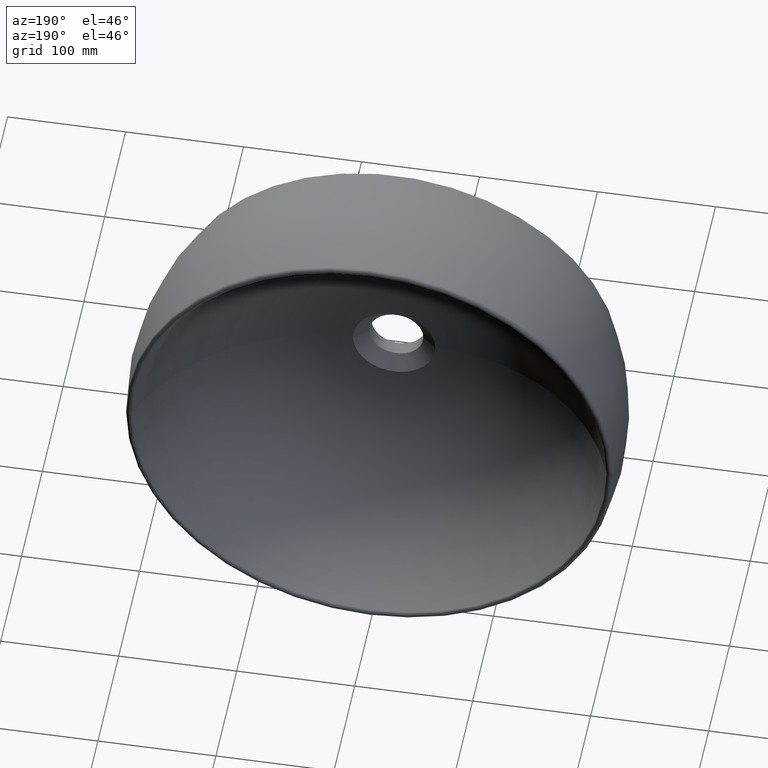
[diagram: clean part render]
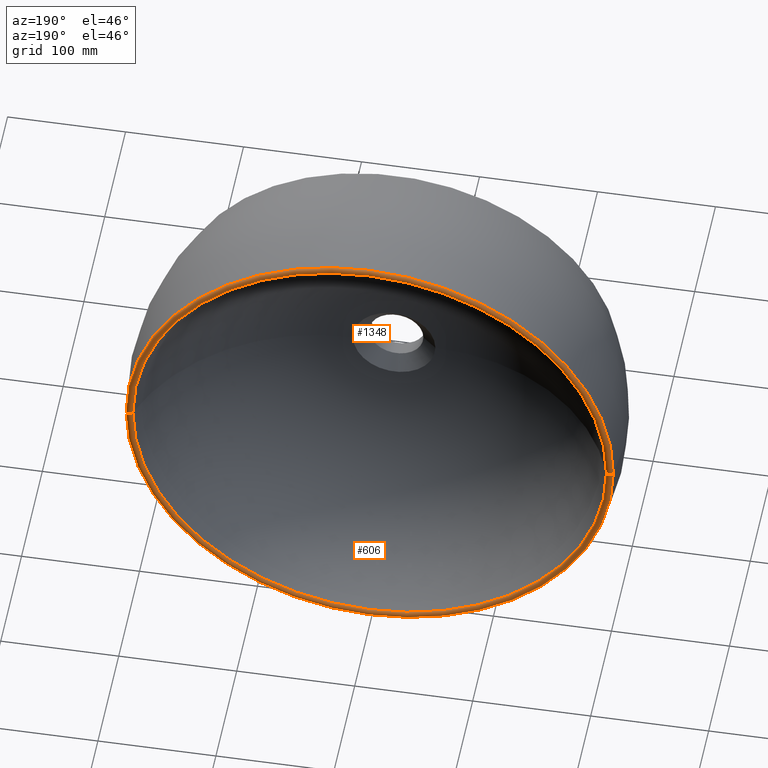
[diagram: same view with one multi-face feature highlighted, each face labeled with its STEP entity id]
A machine part, auxiliary view. The highlighted faces form ONE feature: a constant-radius fillet chain: 2 tangent blend faces with common blend radius 3 mm. The faces share edges in the B-rep.
Their STEP definitions:
[1] entity #606 (Torus):
#14 = CIRCLE ( 'NONE', #1901, 3.000000000000169200 ) ;
#61 = CIRCLE ( 'NONE', #488, 3.000000000000169200 ) ;
#72 = ORIENTED_EDGE ( 'NONE', *, *, #2009, .F. ) ;
#73 = CARTESIAN_POINT ( 'NONE',  ( 200.6871858738753900, 127.9825983199425500, 2.457709198103315300E-014 ) ) ;
#92 = DIRECTION ( 'NONE',  ( 0.0000000000000000000, -0.0000000000000000000, -1.000000000000000000 ) ) ;
#217 = DIRECTION ( 'NONE',  ( -1.000000000000000000, -1.344283695583375100E-016, 0.0000000000000000000 ) ) ;
#236 = CARTESIAN_POINT ( 'NONE',  ( -200.6871858738754500, 127.9825983199425000, 0.0000000000000000000 ) ) ;
#246 = CARTESIAN_POINT ( 'NONE',  ( -2.775557561562891400E-014, 126.9999999999998000, 0.0000000000000000000 ) ) ;
#336 = VERTEX_POINT ( 'NONE', #73 ) ;
#408 = EDGE_CURVE ( 'NONE', #336, #618, #2152, .T. ) ;
#488 = AXIS2_PLACEMENT_3D ( 'NONE', #1383, #92, #795 ) ;
#606 = ADVANCED_FACE ( 'NONE', ( #1047 ), #1539, .T. ) ;
#618 = VERTEX_POINT ( 'NONE', #236 ) ;
#716 = EDGE_CURVE ( 'NONE', #1380, #618, #61, .T. ) ;
#743 = DIRECTION ( 'NONE',  ( -1.246832498358330100E-016, 1.000000000000000000, -0.0000000000000000000 ) ) ;
#795 = DIRECTION ( 'NONE',  ( -1.000000000000000000, 0.0000000000000000000, 0.0000000000000000000 ) ) ;
#903 = DIRECTION ( 'NONE',  ( -1.000000000000000000, -1.383026798386234700E-016, 0.0000000000000000000 ) ) ;
#925 = DIRECTION ( 'NONE',  ( -1.224646799147353200E-016, -1.526929428187426500E-032, 1.000000000000000000 ) ) ;
#971 = ORIENTED_EDGE ( 'NONE', *, *, #1672, .T. ) ;
#1047 = FACE_OUTER_BOUND ( 'NONE', #1210, .T. ) ;
#1210 = EDGE_LOOP ( 'NONE', ( #72, #971, #1258, #1828 ) ) ;
#1258 = ORIENTED_EDGE ( 'NONE', *, *, #716, .T. ) ;
#1313 = DIRECTION ( 'NONE',  ( -1.000000000000000000, -1.246832498358330100E-016, 0.0000000000000000000 ) ) ;
#1354 = CARTESIAN_POINT ( 'NONE',  ( -206.4711169734443400, 127.5486081951548400, 0.0000000000000000000 ) ) ;
#1359 = AXIS2_PLACEMENT_3D ( 'NONE', #246, #1552, #1313 ) ;
#1380 = VERTEX_POINT ( 'NONE', #1354 ) ;
#1383 = CARTESIAN_POINT ( 'NONE',  ( -203.5217053290294900, 126.9999999999997700, 0.0000000000000000000 ) ) ;
#1539 = TOROIDAL_SURFACE ( 'NONE', #1359, 203.5217053290294600, 3.000000000000171000 ) ;
#1552 = DIRECTION ( 'NONE',  ( -1.246832498358330100E-016, 1.000000000000000000, -0.0000000000000000000 ) ) ;
#1609 = DIRECTION ( 'NONE',  ( -1.246832498358330100E-016, 1.000000000000000000, -0.0000000000000000000 ) ) ;
#1657 = AXIS2_PLACEMENT_3D ( 'NONE', #2001, #743, #217 ) ;
#1672 = EDGE_CURVE ( 'NONE', #1962, #1380, #2112, .T. ) ;
#1828 = ORIENTED_EDGE ( 'NONE', *, *, #408, .F. ) ;
#1831 = AXIS2_PLACEMENT_3D ( 'NONE', #2025, #1609, #903 ) ;
#1901 = AXIS2_PLACEMENT_3D ( 'NONE', #2005, #925, #2172 ) ;
#1962 = VERTEX_POINT ( 'NONE', #2157 ) ;
#2001 = CARTESIAN_POINT ( 'NONE',  ( -1.590317498180927100E-014, 127.5486081951548700, 0.0000000000000000000 ) ) ;
#2005 = CARTESIAN_POINT ( 'NONE',  ( 203.5217053290294300, 126.9999999999998300, 2.492422049882067500E-014 ) ) ;
#2009 = EDGE_CURVE ( 'NONE', #1962, #336, #14, .T. ) ;
#2025 = CARTESIAN_POINT ( 'NONE',  ( -1.595728628096445400E-014, 127.9825983199425300, 0.0000000000000000000 ) ) ;
#2112 = CIRCLE ( 'NONE', #1657, 206.4711169734443700 ) ;
#2152 = CIRCLE ( 'NONE', #1831, 200.6871858738754200 ) ;
#2157 = CARTESIAN_POINT ( 'NONE',  ( 206.4711169734442800, 127.5486081951549000, 2.528541925179073500E-014 ) ) ;
#2172 = DIRECTION ( 'NONE',  ( 1.000000000000000000, 0.0000000000000000000, 1.224646799147353500E-016 ) ) ;
[2] entity #1348 (Torus):
#14 = CIRCLE ( 'NONE', #1901, 3.000000000000169200 ) ;
#61 = CIRCLE ( 'NONE', #488, 3.000000000000169200 ) ;
#73 = CARTESIAN_POINT ( 'NONE',  ( 200.6871858738753900, 127.9825983199425500, 2.457709198103315300E-014 ) ) ;
#92 = DIRECTION ( 'NONE',  ( 0.0000000000000000000, -0.0000000000000000000, -1.000000000000000000 ) ) ;
#143 = ORIENTED_EDGE ( 'NONE', *, *, #2009, .T. ) ;
#236 = CARTESIAN_POINT ( 'NONE',  ( -200.6871858738754500, 127.9825983199425000, 0.0000000000000000000 ) ) ;
#336 = VERTEX_POINT ( 'NONE', #73 ) ;
#355 = AXIS2_PLACEMENT_3D ( 'NONE', #999, #380, #560 ) ;
#380 = DIRECTION ( 'NONE',  ( -1.246832498358330100E-016, 1.000000000000000000, -0.0000000000000000000 ) ) ;
#448 = EDGE_CURVE ( 'NONE', #1380, #1962, #2107, .T. ) ;
#488 = AXIS2_PLACEMENT_3D ( 'NONE', #1383, #92, #795 ) ;
#525 = TOROIDAL_SURFACE ( 'NONE', #1413, 203.5217053290294600, 3.000000000000171000 ) ;
#560 = DIRECTION ( 'NONE',  ( -1.000000000000000000, -1.383026798386234700E-016, 0.0000000000000000000 ) ) ;
#618 = VERTEX_POINT ( 'NONE', #236 ) ;
#716 = EDGE_CURVE ( 'NONE', #1380, #618, #61, .T. ) ;
#795 = DIRECTION ( 'NONE',  ( -1.000000000000000000, 0.0000000000000000000, 0.0000000000000000000 ) ) ;
#812 = CARTESIAN_POINT ( 'NONE',  ( -2.775557561562891400E-014, 126.9999999999998000, 0.0000000000000000000 ) ) ;
#899 = AXIS2_PLACEMENT_3D ( 'NONE', #1123, #1967, #1118 ) ;
#925 = DIRECTION ( 'NONE',  ( -1.224646799147353200E-016, -1.526929428187426500E-032, 1.000000000000000000 ) ) ;
#999 = CARTESIAN_POINT ( 'NONE',  ( -1.595728628096445400E-014, 127.9825983199425300, 0.0000000000000000000 ) ) ;
#1118 = DIRECTION ( 'NONE',  ( -1.000000000000000000, -1.344283695583375100E-016, 0.0000000000000000000 ) ) ;
#1123 = CARTESIAN_POINT ( 'NONE',  ( -1.590317498180927100E-014, 127.5486081951548700, 0.0000000000000000000 ) ) ;
#1348 = ADVANCED_FACE ( 'NONE', ( #1515 ), #525, .T. ) ;
#1354 = CARTESIAN_POINT ( 'NONE',  ( -206.4711169734443400, 127.5486081951548400, 0.0000000000000000000 ) ) ;
#1380 = VERTEX_POINT ( 'NONE', #1354 ) ;
#1383 = CARTESIAN_POINT ( 'NONE',  ( -203.5217053290294900, 126.9999999999997700, 0.0000000000000000000 ) ) ;
#1413 = AXIS2_PLACEMENT_3D ( 'NONE', #812, #1635, #1801 ) ;
#1460 = EDGE_CURVE ( 'NONE', #618, #336, #2273, .T. ) ;
#1515 = FACE_OUTER_BOUND ( 'NONE', #2154, .T. ) ;
#1635 = DIRECTION ( 'NONE',  ( -1.246832498358330100E-016, 1.000000000000000000, -0.0000000000000000000 ) ) ;
#1801 = DIRECTION ( 'NONE',  ( -1.000000000000000000, -1.246832498358330100E-016, 0.0000000000000000000 ) ) ;
#1832 = ORIENTED_EDGE ( 'NONE', *, *, #716, .F. ) ;
#1877 = ORIENTED_EDGE ( 'NONE', *, *, #1460, .F. ) ;
#1901 = AXIS2_PLACEMENT_3D ( 'NONE', #2005, #925, #2172 ) ;
#1952 = ORIENTED_EDGE ( 'NONE', *, *, #448, .T. ) ;
#1962 = VERTEX_POINT ( 'NONE', #2157 ) ;
#1967 = DIRECTION ( 'NONE',  ( -1.246832498358330100E-016, 1.000000000000000000, -0.0000000000000000000 ) ) ;
#2005 = CARTESIAN_POINT ( 'NONE',  ( 203.5217053290294300, 126.9999999999998300, 2.492422049882067500E-014 ) ) ;
#2009 = EDGE_CURVE ( 'NONE', #1962, #336, #14, .T. ) ;
#2107 = CIRCLE ( 'NONE', #899, 206.4711169734443700 ) ;
#2154 = EDGE_LOOP ( 'NONE', ( #1952, #143, #1877, #1832 ) ) ;
#2157 = CARTESIAN_POINT ( 'NONE',  ( 206.4711169734442800, 127.5486081951549000, 2.528541925179073500E-014 ) ) ;
#2172 = DIRECTION ( 'NONE',  ( 1.000000000000000000, 0.0000000000000000000, 1.224646799147353500E-016 ) ) ;
#2273 = CIRCLE ( 'NONE', #355, 200.6871858738754200 ) ;